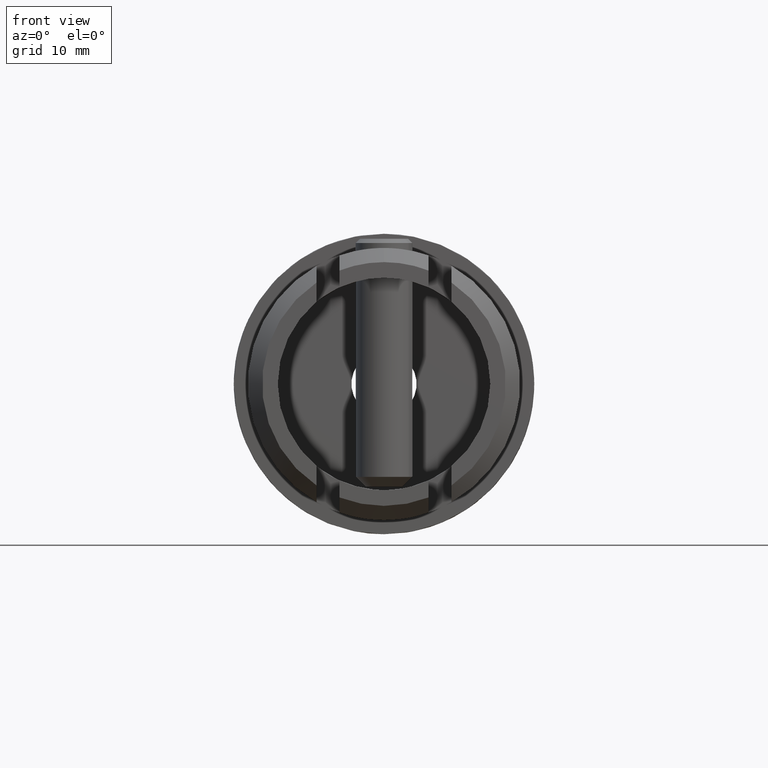
[diagram: clean part render]
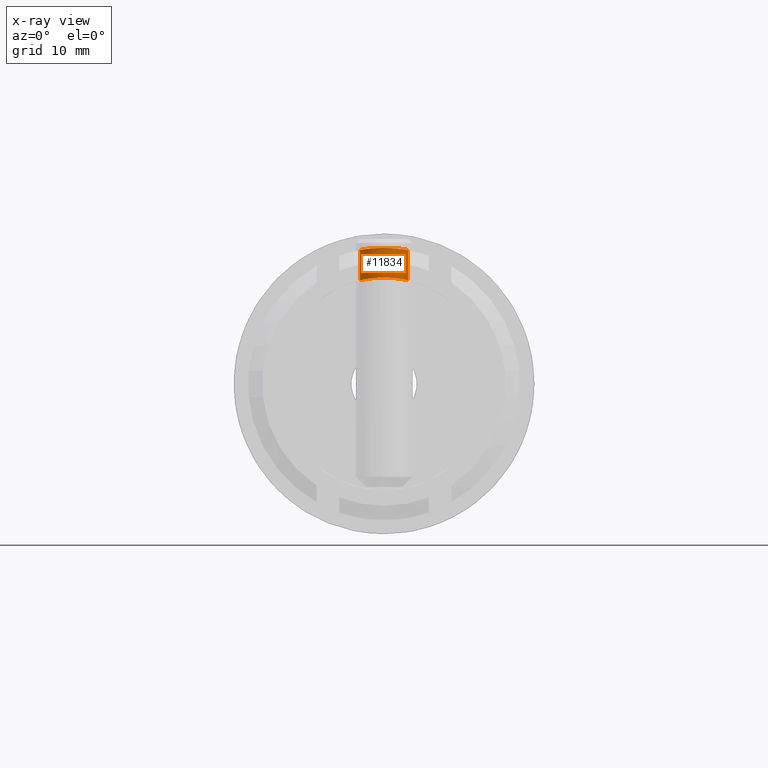
[diagram: x-ray — body ghosted, one internal face saturated and labeled with its STEP entity id]
A machine part, front view, then the same camera in x-ray: the body is ghosted and one INTERNAL B-rep face — a face not visible from any outside direction — is saturated and labeled: STEP entity #11834.
In plain terms, the highlighted cylindrical surface (edge-blend (fillet) strip) has radius 3.4 mm, axis along (0, 0, 1).
Its self-contained STEP definition (entity closure, byte-faithful):
#83 = CARTESIAN_POINT ( 'NONE',  ( -3.055727400500110500, -26.50733119683281900, 18.95547383769931200 ) ) ;
#680 = B_SPLINE_CURVE_WITH_KNOTS ( 'NONE', 3,
 ( #9100, #1978, #12400, #7071, #878, #8145, #7028, #1930, #1843, #10128, #13274, #12219, #13451, #2911, #7166, #4903, #6978, #968 ),
 .UNSPECIFIED., .F., .F.,
 ( 4, 2, 2, 2, 2, 2, 2, 2, 4 ),
 ( 0.0000000000000000000, 0.0006658459080340288100, 0.001331691816068057600, 0.001997537724102086200, 0.002663383632136115200, 0.003329229540170144200, 0.003995075448204172400, 0.004660921356238201400, 0.005326767264272230400 ),
 .UNSPECIFIED. ) ;
#735 = EDGE_CURVE ( 'NONE', #6060, #10447, #680, .T. ) ;
#847 = CARTESIAN_POINT ( 'NONE',  ( 3.053896593360992300, -26.51087650410948600, 14.68609160353892000 ) ) ;
#878 = CARTESIAN_POINT ( 'NONE',  ( 3.225520537133356000, -26.09803536323056200, 18.92732209548952900 ) ) ;
#887 = CARTESIAN_POINT ( 'NONE',  ( 0.8814749512578616800, -28.29126503438467200, 14.97566816257032200 ) ) ;
#968 = CARTESIAN_POINT ( 'NONE',  ( 2.376640692204603300E-023, -28.39999999999999500, 19.19999999999999900 ) ) ;
#978 = CARTESIAN_POINT ( 'NONE',  ( 3.224066408539760800, -26.10201089238604400, 14.64967463064636100 ) ) ;
#1137 = CARTESIAN_POINT ( 'NONE',  ( -1.508404157728751000, -28.05523631818846300, 19.14177017049258500 ) ) ;
#1284 = VECTOR ( 'NONE', #2175, 1000.000000000000000 ) ;
#1842 = CARTESIAN_POINT ( 'NONE',  ( -3.399999999999989300, -25.00000000000000000, 14.60958589419974100 ) ) ;
#1843 = CARTESIAN_POINT ( 'NONE',  ( 2.559790689736318300, -27.24866132288720500, 19.02925076712428900 ) ) ;
#1878 = CARTESIAN_POINT ( 'NONE',  ( 1.835082352866933700E-015, -28.39999999999999500, 15.00000000000000000 ) ) ;
#1895 = CARTESIAN_POINT ( 'NONE',  ( 2.949492969559797100, -26.70599047618085800, 14.70770237801933300 ) ) ;
#1930 = CARTESIAN_POINT ( 'NONE',  ( 2.703182726415761300, -27.07416078651036900, 19.00916565328045100 ) ) ;
#1978 = CARTESIAN_POINT ( 'NONE',  ( 3.399999999999995500, -25.22517968390954100, 18.89656053359975000 ) ) ;
#2008 = CARTESIAN_POINT ( 'NONE',  ( -3.378410624143966400, -25.44378587723558700, 14.61466299602458600 ) ) ;
#2048 = CARTESIAN_POINT ( 'NONE',  ( -0.8913987325942133200, -28.31144237963262400, 14.97923459957868400 ) ) ;
#2136 = DIRECTION ( 'NONE',  ( -0.0000000000000000000, -0.0000000000000000000, 1.000000000000000000 ) ) ;
#2175 = DIRECTION ( 'NONE',  ( -0.0000000000000000000, -0.0000000000000000000, 1.000000000000000000 ) ) ;
#2184 = CARTESIAN_POINT ( 'NONE',  ( -3.226124113009859200, -26.09619363735106700, 18.92721800913506400 ) ) ;
#2227 = CARTESIAN_POINT ( 'NONE',  ( -3.399999999999989300, -25.00000000000000000, 18.89656053359975700 ) ) ;
#2264 = CARTESIAN_POINT ( 'NONE',  ( -2.562863710095955900, -27.24538851297036500, 19.02885010893680100 ) ) ;
#2314 = CARTESIAN_POINT ( 'NONE',  ( 2.376640692204603300E-023, -28.39999999999999500, 19.19999999999999900 ) ) ;
#2441 = CARTESIAN_POINT ( 'NONE',  ( -3.399999999999989300, -25.00000000000000000, 18.89656053359975700 ) ) ;
#2472 = EDGE_CURVE ( 'NONE', #8273, #4667, #10895, .T. ) ;
#2911 = CARTESIAN_POINT ( 'NONE',  ( 1.097428731010302600, -28.22563037754456200, 19.16970769407220800 ) ) ;
#2968 = CARTESIAN_POINT ( 'NONE',  ( 2.700898609786770900, -27.07727200480687600, 14.75537748475212900 ) ) ;
#3296 = CARTESIAN_POINT ( 'NONE',  ( -2.703116601869896700, -27.07415328518139600, 19.00917215082173300 ) ) ;
#3838 = CARTESIAN_POINT ( 'NONE',  ( -3.399999999999989300, -25.00000000000000000, 19.19999999999999900 ) ) ;
#3996 = CARTESIAN_POINT ( 'NONE',  ( 3.377819665974671500, -25.44754056291512600, 14.61479918256340200 ) ) ;
#4034 = CARTESIAN_POINT ( 'NONE',  ( 2.074017518553841200, -27.70333805823284500, 14.85709545295113500 ) ) ;
#4105 = CARTESIAN_POINT ( 'NONE',  ( -2.073992863956448200, -27.70323612712042300, 14.85708278665559200 ) ) ;
#4179 = EDGE_CURVE ( 'NONE', #8273, #5693, #11169, .T. ) ;
#4305 = B_SPLINE_CURVE_WITH_KNOTS ( 'NONE', 3,
 ( #5085, #6117, #13505, #887, #10320, #12459, #9292, #4034, #4955, #8283, #2968, #1895, #847, #978, #8241, #3996, #9333, #8153 ),
 .UNSPECIFIED., .F., .F.,
 ( 4, 2, 2, 2, 2, 2, 2, 2, 4 ),
 ( 0.01599686905553567400, 0.01666306375248626300, 0.01732925844943685600, 0.01799545314638744500, 0.01866164784333803500, 0.01932784254028862400, 0.01999403723723921400, 0.02066023193418980600, 0.02132642663114039600 ),
 .UNSPECIFIED. ) ;
#4309 = CYLINDRICAL_SURFACE ( 'NONE', #12531, 3.399999999999992400 ) ;
#4322 = CARTESIAN_POINT ( 'NONE',  ( -3.377742567516359300, -25.44767411262656900, 18.90060357828731000 ) ) ;
#4380 = CARTESIAN_POINT ( 'NONE',  ( 3.399999999999995500, -25.00000000000000000, 18.89656053359975700 ) ) ;
#4667 = VERTEX_POINT ( 'NONE', #2441 ) ;
#4903 = CARTESIAN_POINT ( 'NONE',  ( 0.4432961439706343800, -28.37840659844109200, 19.19613978073665500 ) ) ;
#4955 = CARTESIAN_POINT ( 'NONE',  ( 2.247170341244223200, -27.56104290734667800, 14.83156238862305400 ) ) ;
#4972 = CARTESIAN_POINT ( 'NONE',  ( 3.399999999999995500, -25.00000000000000000, 19.19999999999999900 ) ) ;
#4976 = EDGE_CURVE ( 'NONE', #5693, #11409, #4305, .T. ) ;
#5024 = ORIENTED_EDGE ( 'NONE', *, *, #8687, .F. ) ;
#5085 = CARTESIAN_POINT ( 'NONE',  ( 1.835082352866933700E-015, -28.39999999999999500, 15.00000000000000000 ) ) ;
#5108 = CARTESIAN_POINT ( 'NONE',  ( -2.701892754966577700, -27.07586058894278500, 14.75518985085655800 ) ) ;
#5154 = CARTESIAN_POINT ( 'NONE',  ( -3.399999999999989300, -25.00000000000000000, 14.60958589419974100 ) ) ;
#5669 = CARTESIAN_POINT ( 'NONE',  ( 1.835082352866933700E-015, -28.39999999999999500, 15.00000000000000000 ) ) ;
#5693 = VERTEX_POINT ( 'NONE', #5669 ) ;
#5859 = ORIENTED_EDGE ( 'NONE', *, *, #735, .F. ) ;
#6060 = VERTEX_POINT ( 'NONE', #4380 ) ;
#6117 = CARTESIAN_POINT ( 'NONE',  ( 0.2242786566624708200, -28.39999999999999100, 14.99999999999999800 ) ) ;
#6186 = CARTESIAN_POINT ( 'NONE',  ( -3.399999999999991000, -25.22230909879215600, 14.60958589419974300 ) ) ;
#6265 = CARTESIAN_POINT ( 'NONE',  ( -2.074450551975795900, -27.70288525079823600, 19.08849887663496900 ) ) ;
#6317 = CARTESIAN_POINT ( 'NONE',  ( -2.246583337770912300, -27.56181640192191700, 19.06877736435561100 ) ) ;
#6409 = CARTESIAN_POINT ( 'NONE',  ( -3.399999999999989700, -25.22207978690502700, 18.89656053359975700 ) ) ;
#6536 = EDGE_LOOP ( 'NONE', ( #8642, #9449, #7311, #5859, #5024, #12709 ) ) ;
#6591 = FACE_OUTER_BOUND ( 'NONE', #6536, .T. ) ;
#6978 = CARTESIAN_POINT ( 'NONE',  ( 0.2223125264088646200, -28.39999999999999500, 19.19999999999999900 ) ) ;
#7019 = CARTESIAN_POINT ( 'NONE',  ( -2.949194322714334200, -26.70636294232390600, 14.70775662162761300 ) ) ;
#7028 = CARTESIAN_POINT ( 'NONE',  ( 2.950068146911694700, -26.70482777701059300, 18.97241876026424700 ) ) ;
#7071 = CARTESIAN_POINT ( 'NONE',  ( 3.291154430144624500, -25.88178766637781400, 18.91587270131701700 ) ) ;
#7166 = CARTESIAN_POINT ( 'NONE',  ( 0.8825517870237553600, -28.29108568087656300, 19.18096442559811600 ) ) ;
#7196 = DIRECTION ( 'NONE',  ( -0.0000000000000000000, -0.0000000000000000000, 1.000000000000000000 ) ) ;
#7311 = ORIENTED_EDGE ( 'NONE', *, *, #8369, .F. ) ;
#7426 = CARTESIAN_POINT ( 'NONE',  ( -0.8842266540294244600, -28.29053582957309100, 19.18087026755462400 ) ) ;
#8143 = VECTOR ( 'NONE', #7196, 1000.000000000000000 ) ;
#8145 = CARTESIAN_POINT ( 'NONE',  ( 3.054596911027228000, -26.50966953520193700, 18.95565725985300900 ) ) ;
#8153 = CARTESIAN_POINT ( 'NONE',  ( 3.399999999999995500, -25.00000000000000000, 14.60958589419973900 ) ) ;
#8241 = CARTESIAN_POINT ( 'NONE',  ( 3.290161044824932100, -25.88588856546189400, 14.63478257923969700 ) ) ;
#8267 = CARTESIAN_POINT ( 'NONE',  ( -1.511244219321101500, -28.05388301889462000, 14.92511829541025900 ) ) ;
#8273 = VERTEX_POINT ( 'NONE', #1842 ) ;
#8283 = CARTESIAN_POINT ( 'NONE',  ( 2.559421673786895100, -27.24901667659186400, 14.78087880086754200 ) ) ;
#8369 = EDGE_CURVE ( 'NONE', #10447, #4667, #13023, .T. ) ;
#8424 = CARTESIAN_POINT ( 'NONE',  ( 2.376640692204603300E-023, -28.39999999999999500, 19.19999999999999900 ) ) ;
#8445 = CARTESIAN_POINT ( 'NONE',  ( -0.4479530781158717600, -28.37769460745150200, 19.19601466545239900 ) ) ;
#8642 = ORIENTED_EDGE ( 'NONE', *, *, #4179, .F. ) ;
#8687 = EDGE_CURVE ( 'NONE', #11409, #6060, #9883, .T. ) ;
#9100 = CARTESIAN_POINT ( 'NONE',  ( 3.399999999999995500, -25.00000000000000000, 18.89656053359975700 ) ) ;
#9145 = CARTESIAN_POINT ( 'NONE',  ( -0.4487825625421024700, -28.39999999999999900, 15.00000000000000500 ) ) ;
#9292 = CARTESIAN_POINT ( 'NONE',  ( 1.703711668815423900, -27.95075445842253400, 14.90410012429169700 ) ) ;
#9333 = CARTESIAN_POINT ( 'NONE',  ( 3.399999999999995000, -25.22532161819481500, 14.60958589419974100 ) ) ;
#9449 = ORIENTED_EDGE ( 'NONE', *, *, #2472, .T. ) ;
#9582 = CARTESIAN_POINT ( 'NONE',  ( -1.096325849442064500, -28.22611557370103000, 19.16978659231390800 ) ) ;
#9883 = LINE ( 'NONE', #4972, #1284 ) ;
#10128 = CARTESIAN_POINT ( 'NONE',  ( 2.246595356571440900, -27.56160407247903900, 19.06876300228183000 ) ) ;
#10320 = CARTESIAN_POINT ( 'NONE',  ( 1.098344689986040100, -28.22536228056590700, 14.96115078431689900 ) ) ;
#10342 = CARTESIAN_POINT ( 'NONE',  ( -3.055519231428141000, -26.50762360074900300, 14.68575319858795700 ) ) ;
#10447 = VERTEX_POINT ( 'NONE', #8424 ) ;
#10574 = CARTESIAN_POINT ( 'NONE',  ( -2.949125976129830700, -26.70634322181960800, 18.97256232562690300 ) ) ;
#10895 = LINE ( 'NONE', #3838, #8143 ) ;
#11169 = B_SPLINE_CURVE_WITH_KNOTS ( 'NONE', 3,
 ( #5154, #6186, #2008, #11345, #13355, #10342, #7019, #5108, #11301, #12393, #4105, #12444, #8267, #2048, #9145, #1878 ),
 .UNSPECIFIED., .F., .F.,
 ( 4, 2, 2, 2, 2, 2, 2, 4 ),
 ( 0.01066463516937686000, 0.01133116440514671300, 0.01199769364091656500, 0.01266422287668641700, 0.01333075211245627000, 0.01399728134822612200, 0.01466381058399597400, 0.01599686905553567400 ),
 .UNSPECIFIED. ) ;
#11301 = CARTESIAN_POINT ( 'NONE',  ( -2.561697464854407100, -27.24651973001209600, 14.78049083631152700 ) ) ;
#11320 = CARTESIAN_POINT ( 'NONE',  ( 3.399999999999995500, -25.00000000000000000, 14.60958589419973900 ) ) ;
#11345 = CARTESIAN_POINT ( 'NONE',  ( -3.290492969021854300, -25.88501992688318900, 14.63470836243472200 ) ) ;
#11409 = VERTEX_POINT ( 'NONE', #11320 ) ;
#11426 = CARTESIAN_POINT ( 'NONE',  ( 3.061616997868383000E-015, -25.00000000000000000, 19.19999999999999900 ) ) ;
#11479 = CARTESIAN_POINT ( 'NONE',  ( -0.2222045776465042300, -28.39999999999998400, 19.19999999999999900 ) ) ;
#11834 = ADVANCED_FACE ( 'NONE', ( #6591 ), #4309, .F. ) ;
#12219 = CARTESIAN_POINT ( 'NONE',  ( 1.703874031301458000, -27.95072956013240200, 19.12515880648418300 ) ) ;
#12393 = CARTESIAN_POINT ( 'NONE',  ( -2.248294393881501700, -27.56014005812497600, 14.83139830164949500 ) ) ;
#12400 = CARTESIAN_POINT ( 'NONE',  ( 3.377851502675966800, -25.44650442047795000, 18.90058350319802100 ) ) ;
#12444 = CARTESIAN_POINT ( 'NONE',  ( -1.706243842146136800, -27.94918020979554300, 14.90379439204723200 ) ) ;
#12459 = CARTESIAN_POINT ( 'NONE',  ( 1.508582305042529800, -28.05507812139566300, 14.92536677197579700 ) ) ;
#12512 = DIRECTION ( 'NONE',  ( 1.000000000000000000, 0.0000000000000000000, 0.0000000000000000000 ) ) ;
#12531 = AXIS2_PLACEMENT_3D ( 'NONE', #11426, #2136, #12512 ) ;
#12568 = CARTESIAN_POINT ( 'NONE',  ( -1.706736057763372100, -27.94889569173032800, 19.12488396004057700 ) ) ;
#12703 = CARTESIAN_POINT ( 'NONE',  ( -3.290533460267476100, -25.88427739447989500, 18.91598133914387600 ) ) ;
#12709 = ORIENTED_EDGE ( 'NONE', *, *, #4976, .F. ) ;
#13023 = B_SPLINE_CURVE_WITH_KNOTS ( 'NONE', 3,
 ( #2314, #11479, #8445, #7426, #9582, #1137, #12568, #6265, #6317, #2264, #3296, #10574, #83, #2184, #12703, #4322, #6409, #2227 ),
 .UNSPECIFIED., .F., .F.,
 ( 4, 2, 2, 2, 2, 2, 2, 2, 4 ),
 ( 0.005326767264272230400, 0.005992289856104258300, 0.006657812447936285200, 0.007323335039768312200, 0.007988857631600340000, 0.008654380223432367800, 0.009319902815264395600, 0.009985425407096421700, 0.01065094799892845000 ),
 .UNSPECIFIED. ) ;
#13274 = CARTESIAN_POINT ( 'NONE',  ( 2.075616602096845000, -27.70218566584212300, 19.08839180782087300 ) ) ;
#13355 = CARTESIAN_POINT ( 'NONE',  ( -3.225390616807788800, -26.09817214687447200, 14.64938224473891800 ) ) ;
#13451 = CARTESIAN_POINT ( 'NONE',  ( 1.506572030945976900, -28.05602386570466000, 19.14189864175937600 ) ) ;
#13505 = CARTESIAN_POINT ( 'NONE',  ( 0.4453932086113841500, -28.37802434952460100, 14.99497448796897300 ) ) ;